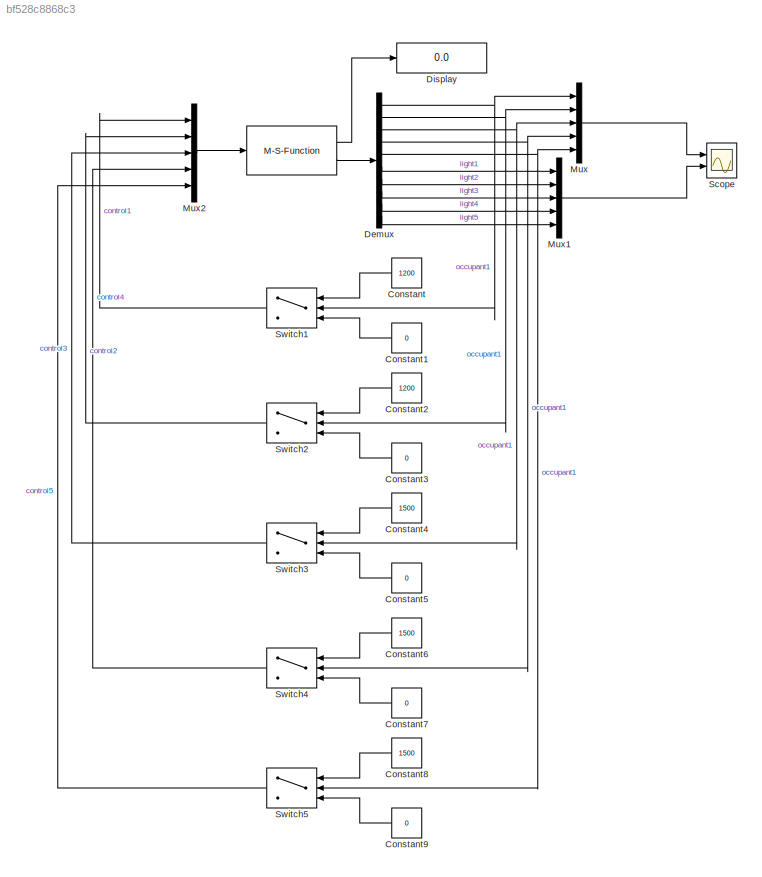
MODEL slx_bf528c8868c3
KIND model
BLOCK [M-S-Function]  
  FunctionName = GridMat_Simulink
  Parameters = step,file,configuration
  Ports = [1, 2]
BLOCK [Constant] Constant
  Value = 1200
BLOCK [Constant] Constant1
  Value = 0
BLOCK [Constant] Constant2
  Value = 1200
BLOCK [Constant] Constant3
  Value = 0
BLOCK [Constant] Constant4
  Value = 1500
BLOCK [Constant] Constant5
  Value = 0
BLOCK [Constant] Constant6
  Value = 1500
BLOCK [Constant] Constant7
  Value = 0
BLOCK [Constant] Constant8
  Value = 1500
BLOCK [Constant] Constant9
  Value = 0
BLOCK [Demux] Demux
  DisplayOption = bar
  Outputs = 10
  Ports = [1, 10]
BLOCK [Display] Display
  Decimation = 1
  Lockdown = off
  Ports = [1]
BLOCK [Mux] Mux
  DisplayOption = bar
  Inputs = 5
  Ports = [5, 1]
BLOCK [Mux] Mux1
  DisplayOption = bar
  Inputs = 5
  Ports = [5, 1]
BLOCK [Mux] Mux2
  DisplayOption = bar
  Inputs = 5
  Ports = [5, 1]
BLOCK [Scope] Scope
  DataFormat = StructureWithTime
  Floating = off
  NumInputPorts = 2
  Ports = [2]
  SampleTime = 0
  ShowLegends = off
  YMax = 1~1.5e+06
  YMin = 0.2~1.2e+06
BLOCK [Switch] Switch1
  Criteria = u2 > Threshold
  InputSameDT = off
  SaturateOnIntegerOverflow = off
BLOCK [Switch] Switch2
  Criteria = u2 > Threshold
  InputSameDT = off
  SaturateOnIntegerOverflow = off
BLOCK [Switch] Switch3
  Criteria = u2 > Threshold
  InputSameDT = off
  SaturateOnIntegerOverflow = off
BLOCK [Switch] Switch4
  Criteria = u2 > Threshold
  InputSameDT = off
  SaturateOnIntegerOverflow = off
BLOCK [Switch] Switch5
  Criteria = u2 > Threshold
  InputSameDT = off
  SaturateOnIntegerOverflow = off
LINE  :1 -> Display:1
LINE  :2 -> Demux:1
LINE Constant1:1 -> Switch1:3
LINE Constant2:1 -> Switch2:1
LINE Constant3:1 -> Switch2:3
LINE Constant4:1 -> Switch3:1
LINE Constant5:1 -> Switch3:3
LINE Constant6:1 -> Switch4:1
LINE Constant7:1 -> Switch4:3
LINE Constant8:1 -> Switch5:1
LINE Constant9:1 -> Switch5:3
LINE Constant:1 -> Switch1:1
NET Demux:1 -> Mux:1, Switch1:2
LINE Demux:10 -> Mux1:5
NET Demux:2 -> Mux:2, Switch2:2
NET Demux:3 -> Mux:3, Switch3:2
NET Demux:4 -> Mux:4, Switch4:2
NET Demux:5 -> Mux:5, Switch5:2
LINE Demux:6 -> Mux1:1
LINE Demux:7 -> Mux1:2
LINE Demux:8 -> Mux1:3
LINE Demux:9 -> Mux1:4
LINE Mux1:1 -> Scope:2
LINE Mux2:1 ->  :1
LINE Mux:1 -> Scope:1
LINE Switch1:1 -> Mux2:1
LINE Switch2:1 -> Mux2:2
LINE Switch3:1 -> Mux2:3
LINE Switch4:1 -> Mux2:4
LINE Switch5:1 -> Mux2:5
note: NET lines group one-source signal fan-out (src -> all destinations, sorted); 1:1 wires keep LINE
